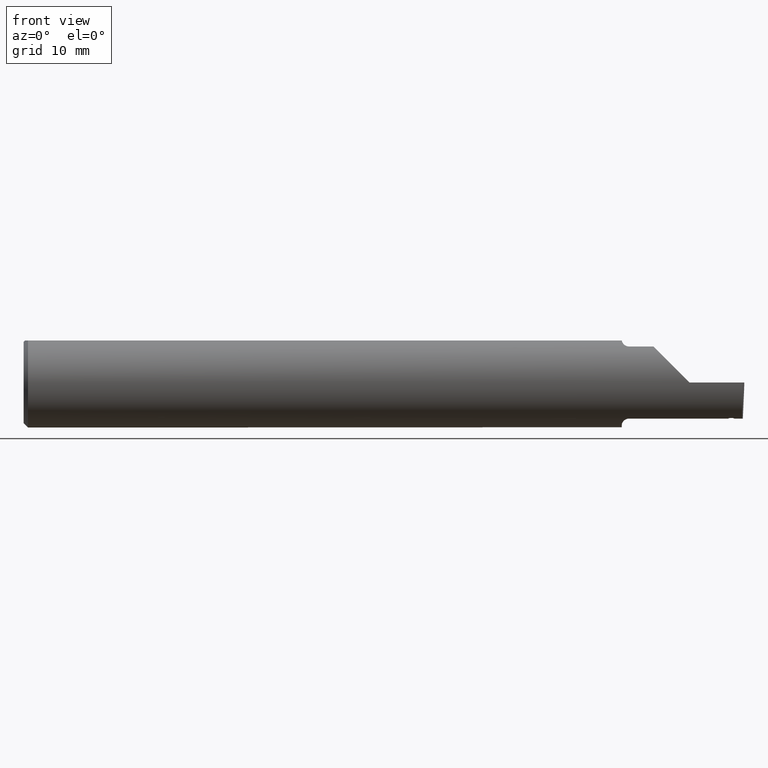
[diagram: clean part render]
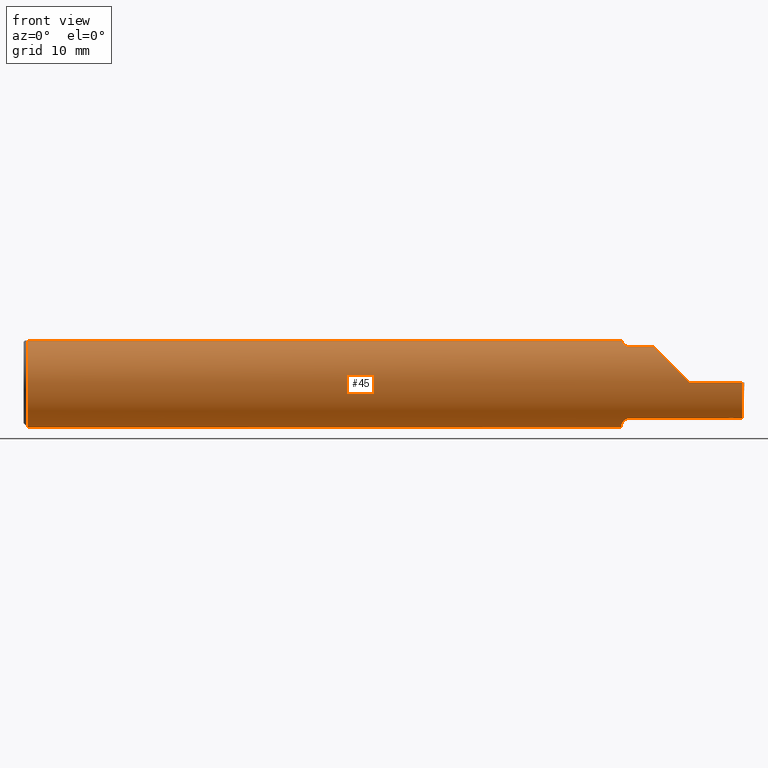
[diagram: same view with one face highlighted and labeled with its STEP entity id]
A machine part, front view. The second image highlights one B-rep face of the part: STEP entity #45.
In plain terms, the highlighted cylindrical surface (partial cylindrical patch) has radius 3.9649 mm, axis along (-1, -0, -0).
Its self-contained STEP definition (entity closure, byte-faithful):
#2 = EDGE_CURVE ( 'NONE', #561, #110, #697, .T. ) ;
#11 = CARTESIAN_POINT ( 'NONE',  ( 2.100000000000000089, -0.09360841750841747411, 0.1249186702281520206 ) ) ;
#20 = CARTESIAN_POINT ( 'NONE',  ( 0.01499999999999999944, 0.000000000000000000, 0.000000000000000000 ) ) ;
#29 = CARTESIAN_POINT ( 'NONE',  ( 2.074999999999999734, -0.05502817059483720158, -0.1460791239054557156 ) ) ;
#30 = EDGE_CURVE ( 'NONE', #181, #561, #1040, .T. ) ;
#34 = CARTESIAN_POINT ( 'NONE',  ( 2.310000000000000053, -0.1560999999999999888, 2.326828918379970872E-17 ) ) ;
#40 = VERTEX_POINT ( 'NONE', #706 ) ;
#43 = ORIENTED_EDGE ( 'NONE', *, *, #195, .F. ) ;
#45 = ADVANCED_FACE ( 'NONE', ( #1045 ), #283, .T. ) ;
#46 = CARTESIAN_POINT ( 'NONE',  ( 2.087810002172886481, -0.08909999999996048858, -0.1281733201567834268 ) ) ;
#48 = ORIENTED_EDGE ( 'NONE', *, *, #677, .F. ) ;
#59 = CARTESIAN_POINT ( 'NONE',  ( 2.100000000000000089, -0.09360841750841744635, -0.1249186702281520206 ) ) ;
#62 = CARTESIAN_POINT ( 'NONE',  ( 2.460758433086303043, -0.09641453430756345699, -0.1227658241297457653 ) ) ;
#67 = CARTESIAN_POINT ( 'NONE',  ( 2.451413631736417464, -0.09596312630643989705, -0.1231190009279407582 ) ) ;
#81 = CARTESIAN_POINT ( 'NONE',  ( 2.465920927715513855, -0.09360841750841732145, -0.1249186702281520484 ) ) ;
#92 = VERTEX_POINT ( 'NONE', #59 ) ;
#95 = CARTESIAN_POINT ( 'NONE',  ( 2.083312875394041974, -0.08466547365232440781, -0.1311808389156051691 ) ) ;
#106 = CARTESIAN_POINT ( 'NONE',  ( 2.074999999999998845, -0.06152246774674052093, -0.1436327148497735240 ) ) ;
#110 = VERTEX_POINT ( 'NONE', #733 ) ;
#111 = CARTESIAN_POINT ( 'NONE',  ( 2.100000000000000089, -0.09360841750841744635, -0.1249186702281520206 ) ) ;
#114 = VERTEX_POINT ( 'NONE', #1087 ) ;
#115 = CARTESIAN_POINT ( 'NONE',  ( 2.091077244708473337, -0.09172492714866099794, -0.1263485955677197681 ) ) ;
#116 = DIRECTION ( 'NONE',  ( 0.000000000000000000, 0.000000000000000000, 1.000000000000000000 ) ) ;
#122 = CARTESIAN_POINT ( 'NONE',  ( 0.000000000000000000, 0.000000000000000000, 0.000000000000000000 ) ) ;
#133 =( BOUNDED_CURVE ( )  B_SPLINE_CURVE ( 3, ( #839, #249, #513, #854 ),
 .UNSPECIFIED., .F., .T. ) 
 B_SPLINE_CURVE_WITH_KNOTS ( ( 4, 4 ),
 ( 4.712388980384689674, 5.640097190903853530 ),
 .UNSPECIFIED. ) 
 CURVE ( )  GEOMETRIC_REPRESENTATION_ITEM ( )  RATIONAL_B_SPLINE_CURVE ( ( 1.000000000000000000, 0.9295565493311498395, 0.9295565493311498395, 1.000000000000000000 ) ) 
 REPRESENTATION_ITEM ( '' )  );
#137 = CIRCLE ( 'NONE', #381, 0.1560999999999999888 ) ;
#138 = CARTESIAN_POINT ( 'NONE',  ( 3.749399456654646757E-32, -0.1560999999999999888, 3.061616997868384127E-16 ) ) ;
#140 = DIRECTION ( 'NONE',  ( 0.000000000000000000, 0.000000000000000000, -1.000000000000000000 ) ) ;
#142 = CARTESIAN_POINT ( 'NONE',  ( 2.087810002172222568, -0.08909999999984934138, 0.1281733201569306146 ) ) ;
#151 = B_SPLINE_CURVE_WITH_KNOTS ( 'NONE', 3,
 ( #1007, #348, #426, #11 ),
 .UNSPECIFIED., .F., .F.,
 ( 4, 4 ),
 ( 0.001050593969402363994, 0.001393966686689414704 ),
 .UNSPECIFIED. ) ;
#153 = ORIENTED_EDGE ( 'NONE', *, *, #2, .F. ) ;
#158 = CARTESIAN_POINT ( 'NONE',  ( 0.01499999999999999944, 0.000000000000000000, 0.000000000000000000 ) ) ;
#159 = VERTEX_POINT ( 'NONE', #239 ) ;
#170 = CARTESIAN_POINT ( 'NONE',  ( 2.492495113650786021, -0.1336908980339254205, -0.09488266708345007017 ) ) ;
#181 = VERTEX_POINT ( 'NONE', #228 ) ;
#192 = EDGE_CURVE ( 'NONE', #819, #343, #913, .T. ) ;
#193 = LINE ( 'NONE', #601, #1024 ) ;
#195 = EDGE_CURVE ( 'NONE', #303, #92, #396, .T. ) ;
#200 = CARTESIAN_POINT ( 'NONE',  ( 2.492408115719126460, -0.09360841750841747411, -0.1249186702281520206 ) ) ;
#201 = DIRECTION ( 'NONE',  ( -1.000000000000000000, -0.000000000000000000, -0.000000000000000000 ) ) ;
#224 = CARTESIAN_POINT ( 'NONE',  ( 2.455151538110904585, -0.09614405354417178418, -0.1229778195475450392 ) ) ;
#228 = CARTESIAN_POINT ( 'NONE',  ( 2.074999999999999734, -0.05502817059483720158, -0.1460791239054557156 ) ) ;
#236 = LINE ( 'NONE', #1001, #758 ) ;
#239 = CARTESIAN_POINT ( 'NONE',  ( 0.01499999999999999944, 0.000000000000000000, -0.1560999999999999888 ) ) ;
#241 = EDGE_CURVE ( 'NONE', #159, #1070, #701, .T. ) ;
#242 = CARTESIAN_POINT ( 'NONE',  ( 2.458266475267615991, -0.09629443627925335369, -0.1228600723520853061 ) ) ;
#249 = CARTESIAN_POINT ( 'NONE',  ( 2.259912409421232837, -0.1560999999999999888, 0.05008759057876772947 ) ) ;
#252 = ORIENTED_EDGE ( 'NONE', *, *, #716, .T. ) ;
#260 = DIRECTION ( 'NONE',  ( -1.000000000000000000, -0.000000000000000000, -0.000000000000000000 ) ) ;
#276 = CARTESIAN_POINT ( 'NONE',  ( 0.01499999999999999944, -0.05497272050753900657, 0.1460999999999999799 ) ) ;
#277 = AXIS2_PLACEMENT_3D ( 'NONE', #122, #201, #452 ) ;
#283 = CYLINDRICAL_SURFACE ( 'NONE', #277, 0.1560999999999999888 ) ;
#290 = EDGE_CURVE ( 'NONE', #741, #889, #151, .T. ) ;
#298 = B_SPLINE_CURVE_WITH_KNOTS ( 'NONE', 3,
 ( #605, #855, #95, #933, #954, #948, #106, #29 ),
 .UNSPECIFIED., .F., .F.,
 ( 4, 2, 2, 4 ),
 ( 0.0003463854958010656741, 0.0006107451645895158390, 0.0008751048333779660581, 0.001403824170954859774 ),
 .UNSPECIFIED. ) ;
#303 = VERTEX_POINT ( 'NONE', #602 ) ;
#324 = B_SPLINE_CURVE_WITH_KNOTS ( 'NONE', 3,
 ( #411, #755, #932, #508, #1078, #820, #833, #142 ),
 .UNSPECIFIED., .F., .F.,
 ( 4, 2, 2, 4 ),
 ( 2.042507625483139074E-06, 0.0005263182385139235754, 0.0007884561039581438387, 0.001050593969402363994 ),
 .UNSPECIFIED. ) ;
#343 = VERTEX_POINT ( 'NONE', #352 ) ;
#347 = B_SPLINE_CURVE_WITH_KNOTS ( 'NONE', 3,
 ( #713, #357, #787, #1033 ),
 .UNSPECIFIED., .F., .F.,
 ( 4, 4 ),
 ( 5.293749646857445613E-18, 7.520689195611335071E-05 ),
 .UNSPECIFIED. ) ;
#348 = CARTESIAN_POINT ( 'NONE',  ( 2.091072683443917946, -0.09172126259464279119, 0.1263511429915041839 ) ) ;
#352 = CARTESIAN_POINT ( 'NONE',  ( 2.074999999999999734, -0.05502817059483720158, 0.1460791239054557156 ) ) ;
#354 = ORIENTED_EDGE ( 'NONE', *, *, #30, .F. ) ;
#356 = DIRECTION ( 'NONE',  ( 1.000000000000000000, 0.000000000000000000, 0.000000000000000000 ) ) ;
#357 = CARTESIAN_POINT ( 'NONE',  ( 2.445345111343429245, -0.09500096213625153219, -0.1238660165995770224 ) ) ;
#360 = AXIS2_PLACEMENT_3D ( 'NONE', #384, #818, #140 ) ;
#364 = DIRECTION ( 'NONE',  ( 0.000000000000000000, 0.000000000000000000, -1.000000000000000000 ) ) ;
#367 = EDGE_CURVE ( 'NONE', #114, #303, #347, .T. ) ;
#376 = VERTEX_POINT ( 'NONE', #1052 ) ;
#381 = AXIS2_PLACEMENT_3D ( 'NONE', #20, #260, #116 ) ;
#383 = CARTESIAN_POINT ( 'NONE',  ( 0.000000000000000000, -0.05497272050753900657, 0.1460999999999999799 ) ) ;
#384 = CARTESIAN_POINT ( 'NONE',  ( 2.075000000000000178, 0.000000000000000000, 0.000000000000000000 ) ) ;
#393 = DIRECTION ( 'NONE',  ( -1.000000000000000000, -0.000000000000000000, -0.000000000000000000 ) ) ;
#396 = LINE ( 'NONE', #807, #968 ) ;
#399 = CARTESIAN_POINT ( 'NONE',  ( 2.447675737396382001, -0.09578188742118470822, -0.1232601041107730250 ) ) ;
#409 = ORIENTED_EDGE ( 'NONE', *, *, #241, .F. ) ;
#411 = CARTESIAN_POINT ( 'NONE',  ( 2.074999999999999734, -0.05502817059483720158, 0.1460791239054557156 ) ) ;
#417 = B_SPLINE_CURVE_WITH_KNOTS ( 'NONE', 3,
 ( #81, #937, #848, #500, #658, #1004 ),
 .UNSPECIFIED., .F., .F.,
 ( 4, 2, 4 ),
 ( 0.0002236889353495204289, 0.0003060019729275876427, 0.0003883150105056549107 ),
 .UNSPECIFIED. ) ;
#422 = ORIENTED_EDGE ( 'NONE', *, *, #702, .F. ) ;
#423 = CARTESIAN_POINT ( 'NONE',  ( 2.494588929872255001, -0.1561000000000000443, 0.000000000000000000 ) ) ;
#426 = CARTESIAN_POINT ( 'NONE',  ( 2.095364775055372775, -0.09360841750841757125, 0.1249186702281519512 ) ) ;
#432 = VERTEX_POINT ( 'NONE', #200 ) ;
#446 =( BOUNDED_CURVE ( )  B_SPLINE_CURVE ( 3, ( #931, #170, #505, #423 ),
 .UNSPECIFIED., .F., .T. ) 
 B_SPLINE_CURVE_WITH_KNOTS ( ( 4, 4 ),
 ( 0.05521439950980804034, 0.9829226100289724100 ),
 .UNSPECIFIED. ) 
 CURVE ( )  GEOMETRIC_REPRESENTATION_ITEM ( )  RATIONAL_B_SPLINE_CURVE ( ( 1.000000000000000000, 0.9295565493311498395, 0.9295565493311498395, 1.000000000000000000 ) ) 
 REPRESENTATION_ITEM ( '' )  );
#452 = DIRECTION ( 'NONE',  ( 0.000000000000000000, 0.000000000000000000, 1.000000000000000000 ) ) ;
#459 = VERTEX_POINT ( 'NONE', #46 ) ;
#460 = VERTEX_POINT ( 'NONE', #62 ) ;
#477 = ORIENTED_EDGE ( 'NONE', *, *, #502, .T. ) ;
#478 = EDGE_CURVE ( 'NONE', #1070, #819, #806, .T. ) ;
#480 = CARTESIAN_POINT ( 'NONE',  ( 2.460758433086303043, -0.09641453430756345699, -0.1227658241297457653 ) ) ;
#490 = DIRECTION ( 'NONE',  ( -1.000000000000000000, -0.000000000000000000, -0.000000000000000000 ) ) ;
#500 = CARTESIAN_POINT ( 'NONE',  ( 2.462958620952170552, -0.09612681111944289258, -0.1229930763061728438 ) ) ;
#502 = EDGE_CURVE ( 'NONE', #868, #40, #133, .T. ) ;
#504 = ORIENTED_EDGE ( 'NONE', *, *, #192, .F. ) ;
#505 = CARTESIAN_POINT ( 'NONE',  ( 2.493277140361873201, -0.1561000000000000165, -0.05008759057876776416 ) ) ;
#508 = CARTESIAN_POINT ( 'NONE',  ( 2.078785422859119603, -0.07659497035394365050, 0.1360571150960169506 ) ) ;
#513 = CARTESIAN_POINT ( 'NONE',  ( 2.215117332916550552, -0.1336908980339254205, 0.09488266708345004241 ) ) ;
#551 = AXIS2_PLACEMENT_3D ( 'NONE', #956, #794, #364 ) ;
#561 = VERTEX_POINT ( 'NONE', #761 ) ;
#562 = LINE ( 'NONE', #138, #1005 ) ;
#568 = CARTESIAN_POINT ( 'NONE',  ( 2.453282581884050462, -0.09605366783568212996, -0.1230484297883021605 ) ) ;
#575 = CARTESIAN_POINT ( 'NONE',  ( 2.459512452820178385, -0.09635452000985572640, -0.1228129565512181276 ) ) ;
#587 = CARTESIAN_POINT ( 'NONE',  ( 2.075000000000000178, -0.05497272050753899270, 0.1460999999999999799 ) ) ;
#597 = EDGE_CURVE ( 'NONE', #803, #460, #417, .T. ) ;
#601 = CARTESIAN_POINT ( 'NONE',  ( 2.278250000000000330, -0.09360841750841747411, 0.1249186702281520206 ) ) ;
#602 = CARTESIAN_POINT ( 'NONE',  ( 2.444421270371395227, -0.09360841750841732145, -0.1249186702281520206 ) ) ;
#605 = CARTESIAN_POINT ( 'NONE',  ( 2.087810002172886481, -0.08909999999996048858, -0.1281733201567834268 ) ) ;
#608 = CARTESIAN_POINT ( 'NONE',  ( 2.100000000000000089, -0.09360841750841747411, 0.1249186702281520206 ) ) ;
#622 = ORIENTED_EDGE ( 'NONE', *, *, #597, .F. ) ;
#631 = ORIENTED_EDGE ( 'NONE', *, *, #1072, .F. ) ;
#637 = ORIENTED_EDGE ( 'NONE', *, *, #367, .F. ) ;
#652 = DIRECTION ( 'NONE',  ( -1.000000000000000000, -0.000000000000000000, -0.000000000000000000 ) ) ;
#658 = CARTESIAN_POINT ( 'NONE',  ( 2.461870861435892621, -0.09646811579188419028, -0.1227237437389290531 ) ) ;
#670 = CARTESIAN_POINT ( 'NONE',  ( 2.465920927715513855, -0.09360841750841732145, -0.1249186702281520484 ) ) ;
#677 = EDGE_CURVE ( 'NONE', #343, #741, #324, .T. ) ;
#694 = EDGE_CURVE ( 'NONE', #432, #803, #236, .T. ) ;
#695 = B_SPLINE_CURVE_WITH_KNOTS ( 'NONE', 3,
 ( #111, #780, #115, #698 ),
 .UNSPECIFIED., .F., .F.,
 ( 4, 4 ),
 ( 1.958690481382186847E-07, 0.0003463854958010656741 ),
 .UNSPECIFIED. ) ;
#697 = LINE ( 'NONE', #788, #895 ) ;
#698 = CARTESIAN_POINT ( 'NONE',  ( 2.087810002172886481, -0.08909999999996048858, -0.1281733201567834268 ) ) ;
#701 = CIRCLE ( 'NONE', #841, 0.1560999999999999888 ) ;
#702 = EDGE_CURVE ( 'NONE', #460, #114, #754, .T. ) ;
#706 = CARTESIAN_POINT ( 'NONE',  ( 2.185081329771848768, -0.09360841750841755737, 0.1249186702281519651 ) ) ;
#713 = CARTESIAN_POINT ( 'NONE',  ( 2.445806799314936164, -0.09569103450145266532, -0.1233305960256488032 ) ) ;
#715 = ORIENTED_EDGE ( 'NONE', *, *, #694, .F. ) ;
#716 = EDGE_CURVE ( 'NONE', #376, #868, #562, .T. ) ;
#733 = CARTESIAN_POINT ( 'NONE',  ( 0.01499999999999999771, 0.05497272050753900657, 0.1460999999999999799 ) ) ;
#741 = VERTEX_POINT ( 'NONE', #925 ) ;
#754 = B_SPLINE_CURVE_WITH_KNOTS ( 'NONE', 3,
 ( #480, #575, #242, #920, #224, #568, #67, #1071, #399, #912 ),
 .UNSPECIFIED., .F., .F.,
 ( 4, 3, 3, 4 ),
 ( 0.000000000000000000, 9.512159278853818574E-05, 0.0002378039862949639675, 0.0003804863840084716435 ),
 .UNSPECIFIED. ) ;
#755 = CARTESIAN_POINT ( 'NONE',  ( 2.074999999999999734, -0.06156212810510084538, 0.1436177747480845979 ) ) ;
#758 = VECTOR ( 'NONE', #393, 39.37007874015748143 ) ;
#761 = CARTESIAN_POINT ( 'NONE',  ( 2.075000000000000178, 0.05497272050753900657, 0.1460999999999999799 ) ) ;
#780 = CARTESIAN_POINT ( 'NONE',  ( 2.095361275910303522, -0.09360841750841759901, -0.1249186702281519512 ) ) ;
#787 = CARTESIAN_POINT ( 'NONE',  ( 2.444883274121979699, -0.09430675028159224427, -0.1243953711434615111 ) ) ;
#788 = CARTESIAN_POINT ( 'NONE',  ( 0.000000000000000000, 0.05497272050753900657, 0.1460999999999999799 ) ) ;
#794 = DIRECTION ( 'NONE',  ( 1.000000000000000000, 0.000000000000000000, 0.000000000000000000 ) ) ;
#798 = ORIENTED_EDGE ( 'NONE', *, *, #478, .F. ) ;
#803 = VERTEX_POINT ( 'NONE', #670 ) ;
#806 = LINE ( 'NONE', #383, #1055 ) ;
#807 = CARTESIAN_POINT ( 'NONE',  ( 2.278250000000000330, -0.09360841750841747411, -0.1249186702281520206 ) ) ;
#813 = ORIENTED_EDGE ( 'NONE', *, *, #1046, .F. ) ;
#814 = EDGE_CURVE ( 'NONE', #432, #376, #446, .T. ) ;
#818 = DIRECTION ( 'NONE',  ( 1.000000000000000000, 0.000000000000000000, 0.000000000000000000 ) ) ;
#819 = VERTEX_POINT ( 'NONE', #587 ) ;
#820 = CARTESIAN_POINT ( 'NONE',  ( 2.083314215045239060, -0.08466760255782122824, 0.1311795204669789217 ) ) ;
#833 = CARTESIAN_POINT ( 'NONE',  ( 2.085319203512566943, -0.08709887368156789267, 0.1295644080582773749 ) ) ;
#839 = CARTESIAN_POINT ( 'NONE',  ( 2.310000000000000053, -0.1560999999999999888, 2.326828918379970872E-17 ) ) ;
#841 = AXIS2_PLACEMENT_3D ( 'NONE', #158, #490, #1064 ) ;
#848 = CARTESIAN_POINT ( 'NONE',  ( 2.464692907515819265, -0.09506543444703710599, -0.1238152809981272195 ) ) ;
#851 = ORIENTED_EDGE ( 'NONE', *, *, #814, .T. ) ;
#854 = CARTESIAN_POINT ( 'NONE',  ( 2.185081329771848768, -0.09360841750841755737, 0.1249186702281519651 ) ) ;
#855 = CARTESIAN_POINT ( 'NONE',  ( 2.085315048287044171, -0.08709553534231935512, -0.1295667287130568279 ) ) ;
#868 = VERTEX_POINT ( 'NONE', #34 ) ;
#889 = VERTEX_POINT ( 'NONE', #608 ) ;
#895 = VECTOR ( 'NONE', #1053, 39.37007874015748143 ) ;
#899 = DIRECTION ( 'NONE',  ( -1.000000000000000000, -0.000000000000000000, -0.000000000000000000 ) ) ;
#900 = ORIENTED_EDGE ( 'NONE', *, *, #911, .F. ) ;
#911 = EDGE_CURVE ( 'NONE', #92, #459, #695, .T. ) ;
#912 = CARTESIAN_POINT ( 'NONE',  ( 2.445806799314936164, -0.09569103450145266532, -0.1233305960256488032 ) ) ;
#913 = CIRCLE ( 'NONE', #360, 0.1560999999999999888 ) ;
#920 = CARTESIAN_POINT ( 'NONE',  ( 2.457020500426053911, -0.09623428318624049904, -0.1229071712294707436 ) ) ;
#925 = CARTESIAN_POINT ( 'NONE',  ( 2.087810002172222568, -0.08909999999984934138, 0.1281733201569306146 ) ) ;
#930 = EDGE_LOOP ( 'NONE', ( #715, #851, #252, #477, #813, #1014, #48, #504, #798, #409, #1050, #153, #354, #631, #900, #43, #637, #422, #622 ) ) ;
#931 = CARTESIAN_POINT ( 'NONE',  ( 2.492408115719126460, -0.09360841750841747411, -0.1249186702281520206 ) ) ;
#932 = CARTESIAN_POINT ( 'NONE',  ( 2.075844056398636894, -0.06777540567362902446, 0.1407770456887921517 ) ) ;
#933 = CARTESIAN_POINT ( 'NONE',  ( 2.080057722617700833, -0.07943655142502260846, -0.1344116409581928018 ) ) ;
#937 = CARTESIAN_POINT ( 'NONE',  ( 2.465372530024502407, -0.09436784564007082154, -0.1243495890372814661 ) ) ;
#948 = CARTESIAN_POINT ( 'NONE',  ( 2.075847904676645150, -0.06780574120017832107, -0.1407631332654325773 ) ) ;
#954 = CARTESIAN_POINT ( 'NONE',  ( 2.078804698179400834, -0.07664326672408303120, -0.1360300949145557547 ) ) ;
#956 = CARTESIAN_POINT ( 'NONE',  ( 2.075000000000000178, 0.000000000000000000, 0.000000000000000000 ) ) ;
#968 = VECTOR ( 'NONE', #899, 39.37007874015748143 ) ;
#979 = DIRECTION ( 'NONE',  ( 1.000000000000000000, 0.000000000000000000, 0.000000000000000000 ) ) ;
#992 = EDGE_CURVE ( 'NONE', #110, #159, #137, .T. ) ;
#1001 = CARTESIAN_POINT ( 'NONE',  ( 2.278250000000000330, -0.09360841750841747411, -0.1249186702281520206 ) ) ;
#1004 = CARTESIAN_POINT ( 'NONE',  ( 2.460758433086303043, -0.09641453430756345699, -0.1227658241297457653 ) ) ;
#1005 = VECTOR ( 'NONE', #652, 39.37007874015748143 ) ;
#1007 = CARTESIAN_POINT ( 'NONE',  ( 2.087810002172222568, -0.08909999999984934138, 0.1281733201569306146 ) ) ;
#1014 = ORIENTED_EDGE ( 'NONE', *, *, #290, .F. ) ;
#1024 = VECTOR ( 'NONE', #356, 39.37007874015748143 ) ;
#1033 = CARTESIAN_POINT ( 'NONE',  ( 2.444421270371395227, -0.09360841750841732145, -0.1249186702281520206 ) ) ;
#1040 = CIRCLE ( 'NONE', #551, 0.1560999999999999888 ) ;
#1045 = FACE_OUTER_BOUND ( 'NONE', #930, .T. ) ;
#1046 = EDGE_CURVE ( 'NONE', #889, #40, #193, .T. ) ;
#1050 = ORIENTED_EDGE ( 'NONE', *, *, #992, .F. ) ;
#1052 = CARTESIAN_POINT ( 'NONE',  ( 2.494588929872255001, -0.1561000000000000443, 0.000000000000000000 ) ) ;
#1053 = DIRECTION ( 'NONE',  ( -1.000000000000000000, -0.000000000000000000, -0.000000000000000000 ) ) ;
#1055 = VECTOR ( 'NONE', #979, 39.37007874015748143 ) ;
#1064 = DIRECTION ( 'NONE',  ( 0.000000000000000000, 0.000000000000000000, 1.000000000000000000 ) ) ;
#1070 = VERTEX_POINT ( 'NONE', #276 ) ;
#1071 = CARTESIAN_POINT ( 'NONE',  ( 2.449544681533677881, -0.09587258477452799410, -0.1231895720696601915 ) ) ;
#1072 = EDGE_CURVE ( 'NONE', #459, #181, #298, .T. ) ;
#1078 = CARTESIAN_POINT ( 'NONE',  ( 2.080056522840238564, -0.07943464720522702693, 0.1344128205797975040 ) ) ;
#1087 = CARTESIAN_POINT ( 'NONE',  ( 2.445806799314936164, -0.09569103450145266532, -0.1233305960256488032 ) ) ;